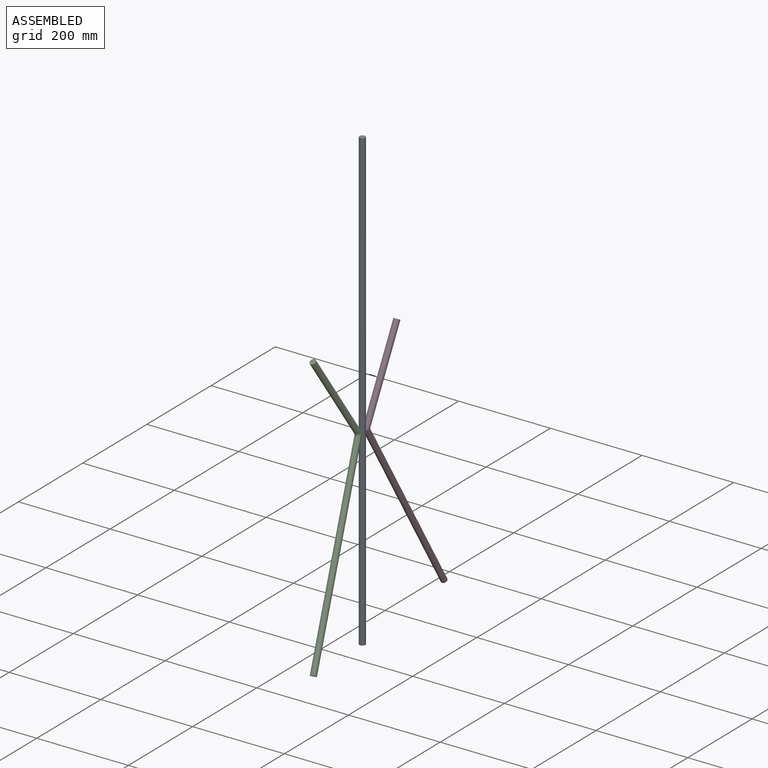
[diagram: assembled view]
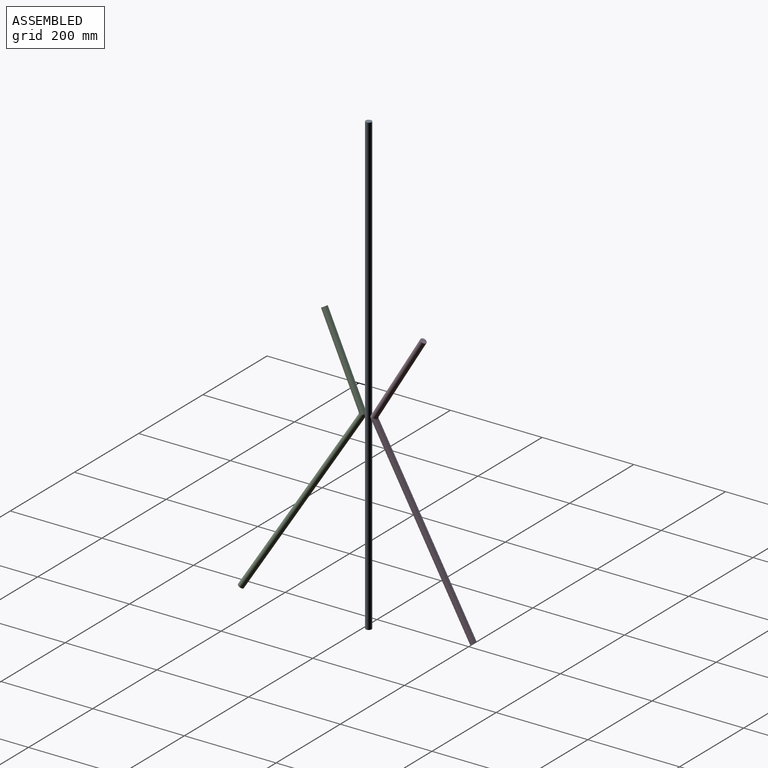
[diagram: assembled view, second angle]
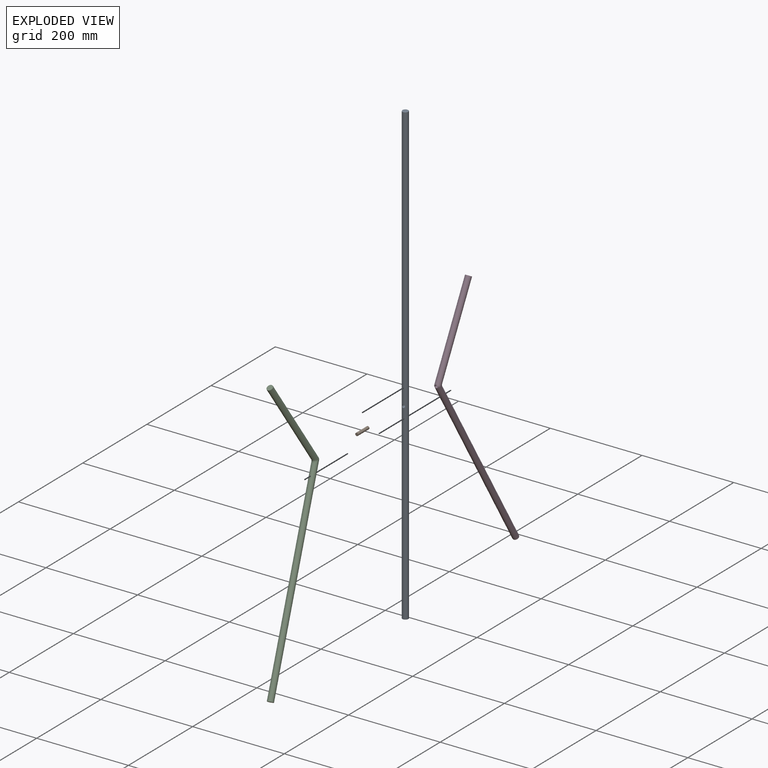
[diagram: exploded view]
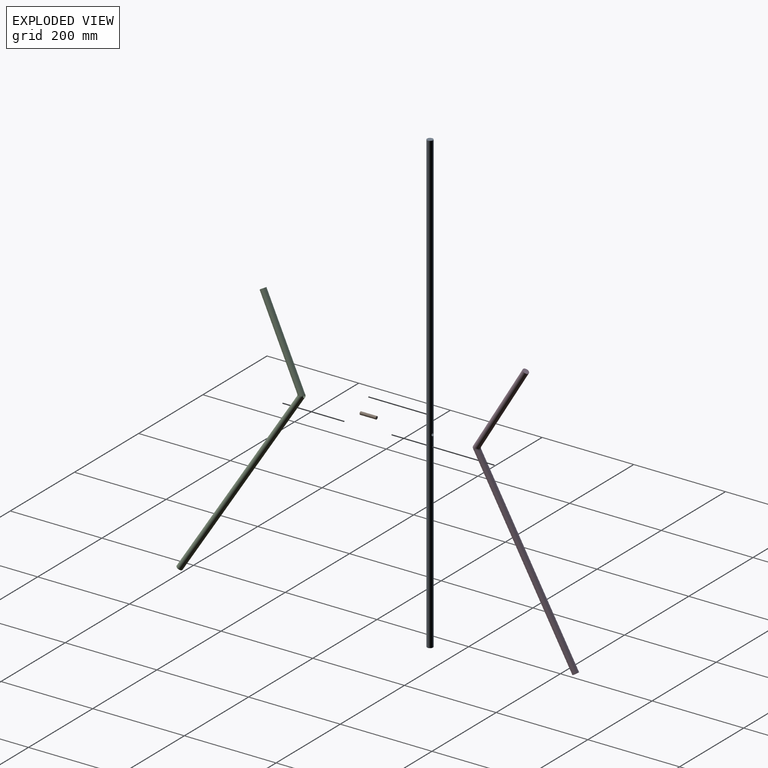
[diagram: exploded view, second angle]
ASSEMBLY  parts=4 mates=3
PART A: 4 faces, bbox 13x13x1000 mm
  f0: cylinder r=6.5mm len=1000mm, axis (0,0,-1), area 40772mm2, adj f1,f2,f3
  f1: plane 13x13mm, normal (0,0,1), area 132.7mm2, adj f0
  f2: plane 13x13mm, normal (0,0,-1), area 132.7mm2, adj f0
  f3: cylinder r=3.25mm len=13mm, axis (0,-1,0), area 248mm2, adj f0
PART B: 3 faces, bbox 6.5x35x6.5 mm
  f0: cylinder r=3.25mm len=35mm, axis (0,1,0), area 714.7mm2, adj f1,f2
  f1: plane 6.5x6.5mm, normal (0,-1,0), area 33.2mm2, adj f0
  f2: plane 6.5x6.5mm, normal (0,1,0), area 33.2mm2, adj f0
PART C: 10 faces, bbox 15.1x190.3x549.3 mm
  f0: plane 13x11.38mm, normal (0,-0.88,0.48), area 132.7mm2, adj f3
  f1: plane 13x13mm, normal (0,0,-1), area 132.7mm2, adj f4
  f2: plane 9.64x8.09mm, normal (0,0.86,0.51), area 7.6mm2, adj f3,f4,f5,f7,f9
  f3: cylinder r=6.5mm len=185.58mm, axis (0,-0.88,0.48), area 8272.7mm2, adj f0,f2,f7,f8,f9
  f4: cylinder r=6.5mm len=443.8mm, axis (0,0,1), area 18014.7mm2, adj f1,f2,f7,f8,f9
  f5: cylinder r=3.25mm len=12.78mm, axis (0,0.86,0.51), area 224.6mm2, adj f2,f6
  f6: plane 6.5x5.6mm, normal (0,0.86,0.51), area 33.2mm2, adj f5
  f7: bspline ~6.09x4.93mm, area 12.9mm2, adj f2,f3,f4
  f8: bspline ~13x9.08mm, area 21.9mm2, adj f3,f4
  f9: bspline ~6.09x4.93mm, area 12.9mm2, adj f2,f3,f4
PART D: same geometry as C
PLACE A t=(-530.98,30.27,-171.17)mm
PLACE B t=(-477.66,47.77,195.26)mm fixed
PLACE C rot(axis=(-0.96,-0.27,-0.07),31.8deg) t=(-475.41,-176.33,-146.88)mm
PLACE D rot(axis=(0.02,0.26,-0.96),179.5deg) t=(-511.64,236.86,-150.3)mm
MATE revolute D.f5 <-> B.f0  axis (0,-1,0) through (-530.98,47.77,248.83)mm
MATE revolute C.f5 <-> B.f0  axis (0,1,0) through (-530.98,12.77,248.83)mm
MATE revolute B.f0 <-> A.f3  axis (0,1,0) through (-530.98,30.27,248.83)mm
